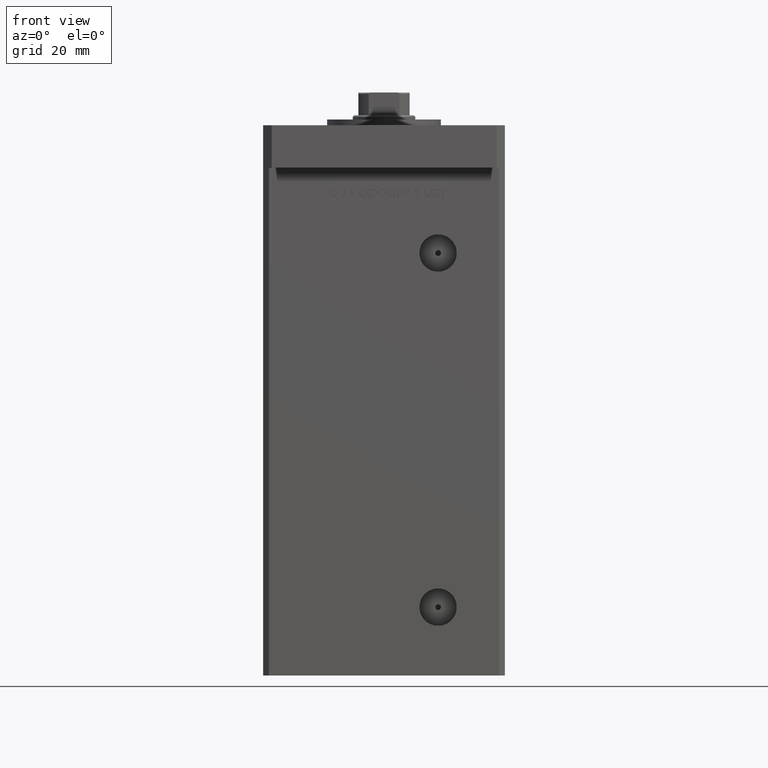
[diagram: clean part render]
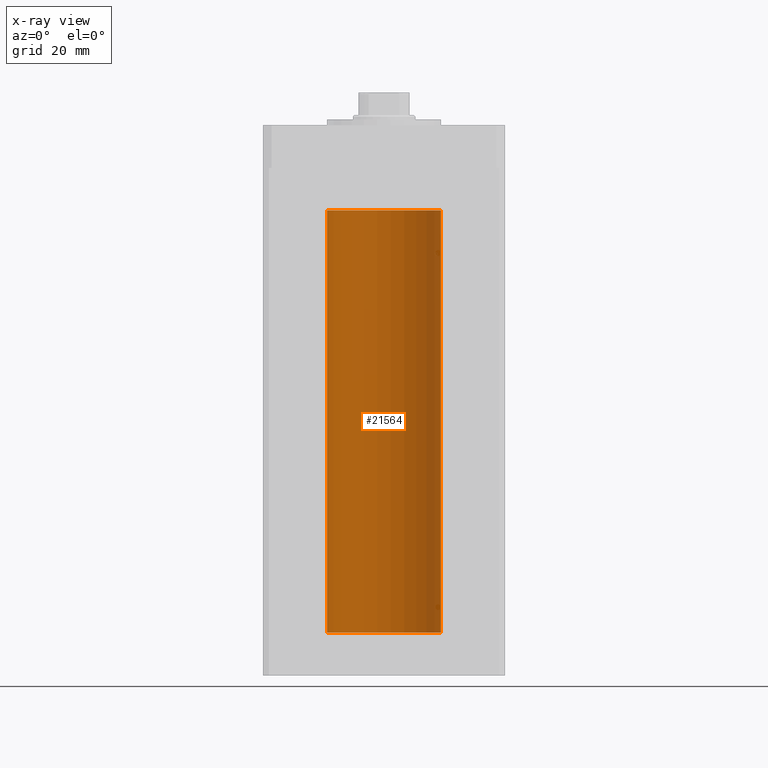
[diagram: x-ray — body ghosted, one internal face saturated and labeled with its STEP entity id]
A machine part, front view, then the same camera in x-ray: the body is ghosted and one INTERNAL B-rep face — a face not visible from any outside direction — is saturated and labeled: STEP entity #21564.
In plain terms, the highlighted cylindrical surface (partial cylindrical patch) has radius 20 mm, axis along (-0, -0, -1).
Its self-contained STEP definition (entity closure, byte-faithful):
#16 = DIRECTION ( 'NONE',  ( -0.000000000000000000, -0.000000000000000000, -1.000000000000000000 ) ) ;
#2478 = EDGE_CURVE ( 'NONE', #29973, #53613, #9569, .T. ) ;
#2928 = CARTESIAN_POINT ( 'NONE',  ( 0.000000000000000000, 0.000000000000000000, 148.5000000000000000 ) ) ;
#4070 = CARTESIAN_POINT ( 'NONE',  ( -20.00000000000000000, 0.000000000000000000, 148.5000000000000000 ) ) ;
#4344 = EDGE_LOOP ( 'NONE', ( #13617, #8138, #51716, #11055 ) ) ;
#6127 = CARTESIAN_POINT ( 'NONE',  ( 0.000000000000000000, 0.000000000000000000, 148.5000000000000000 ) ) ;
#8138 = ORIENTED_EDGE ( 'NONE', *, *, #45508, .T. ) ;
#9569 = CIRCLE ( 'NONE', #19120, 20.00000000000000000 ) ;
#11055 = ORIENTED_EDGE ( 'NONE', *, *, #2478, .F. ) ;
#12549 = AXIS2_PLACEMENT_3D ( 'NONE', #2928, #18422, #35248 ) ;
#13432 = CIRCLE ( 'NONE', #12549, 20.00000000000000000 ) ;
#13617 = ORIENTED_EDGE ( 'NONE', *, *, #43240, .F. ) ;
#14881 = CARTESIAN_POINT ( 'NONE',  ( -20.00000000000000000, 0.000000000000000000, 0.000000000000000000 ) ) ;
#15075 = CARTESIAN_POINT ( 'NONE',  ( 20.00000000000000000, 2.449293598294706513E-15, 0.000000000000000000 ) ) ;
#18374 = FACE_OUTER_BOUND ( 'NONE', #4344, .T. ) ;
#18422 = DIRECTION ( 'NONE',  ( -0.000000000000000000, 0.000000000000000000, 1.000000000000000000 ) ) ;
#18635 = DIRECTION ( 'NONE',  ( -1.000000000000000000, 0.000000000000000000, 0.000000000000000000 ) ) ;
#19120 = AXIS2_PLACEMENT_3D ( 'NONE', #28015, #48344, #19610 ) ;
#19610 = DIRECTION ( 'NONE',  ( 1.000000000000000000, 0.000000000000000000, 0.000000000000000000 ) ) ;
#21564 = ADVANCED_FACE ( 'NONE', ( #18374 ), #34929, .F. ) ;
#23758 = VERTEX_POINT ( 'NONE', #31882 ) ;
#24123 = CARTESIAN_POINT ( 'NONE',  ( 20.00000000000000000, 2.449293598294706513E-15, 148.5000000000000000 ) ) ;
#24649 = VECTOR ( 'NONE', #27916, 1000.000000000000000 ) ;
#24913 = VECTOR ( 'NONE', #16, 1000.000000000000000 ) ;
#27916 = DIRECTION ( 'NONE',  ( -0.000000000000000000, -0.000000000000000000, -1.000000000000000000 ) ) ;
#28015 = CARTESIAN_POINT ( 'NONE',  ( 0.000000000000000000, 0.000000000000000000, 0.000000000000000000 ) ) ;
#28782 = LINE ( 'NONE', #4070, #24913 ) ;
#29973 = VERTEX_POINT ( 'NONE', #15075 ) ;
#31882 = CARTESIAN_POINT ( 'NONE',  ( -20.00000000000000000, 0.000000000000000000, 148.5000000000000000 ) ) ;
#34274 = AXIS2_PLACEMENT_3D ( 'NONE', #6127, #34661, #18635 ) ;
#34661 = DIRECTION ( 'NONE',  ( -0.000000000000000000, -0.000000000000000000, -1.000000000000000000 ) ) ;
#34929 = CYLINDRICAL_SURFACE ( 'NONE', #34274, 20.00000000000000000 ) ;
#35248 = DIRECTION ( 'NONE',  ( 1.000000000000000000, 0.000000000000000000, 0.000000000000000000 ) ) ;
#39607 = LINE ( 'NONE', #24123, #24649 ) ;
#43240 = EDGE_CURVE ( 'NONE', #43729, #29973, #39607, .T. ) ;
#43729 = VERTEX_POINT ( 'NONE', #47785 ) ;
#45508 = EDGE_CURVE ( 'NONE', #43729, #23758, #13432, .T. ) ;
#47785 = CARTESIAN_POINT ( 'NONE',  ( 20.00000000000000000, 2.449293598294706513E-15, 148.5000000000000000 ) ) ;
#48344 = DIRECTION ( 'NONE',  ( -0.000000000000000000, 0.000000000000000000, 1.000000000000000000 ) ) ;
#51716 = ORIENTED_EDGE ( 'NONE', *, *, #52561, .T. ) ;
#52561 = EDGE_CURVE ( 'NONE', #23758, #53613, #28782, .T. ) ;
#53613 = VERTEX_POINT ( 'NONE', #14881 ) ;